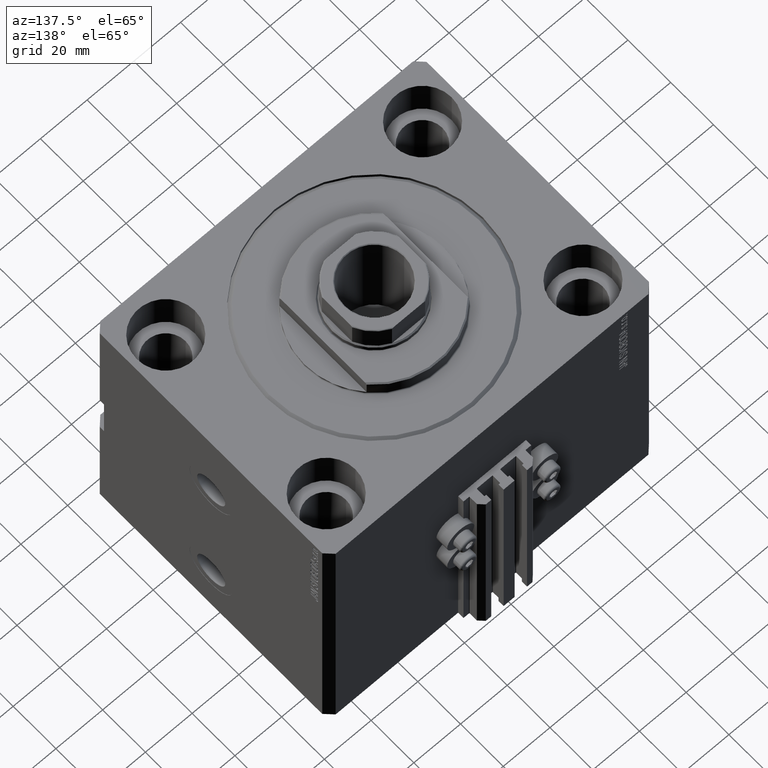
[diagram: clean part render]
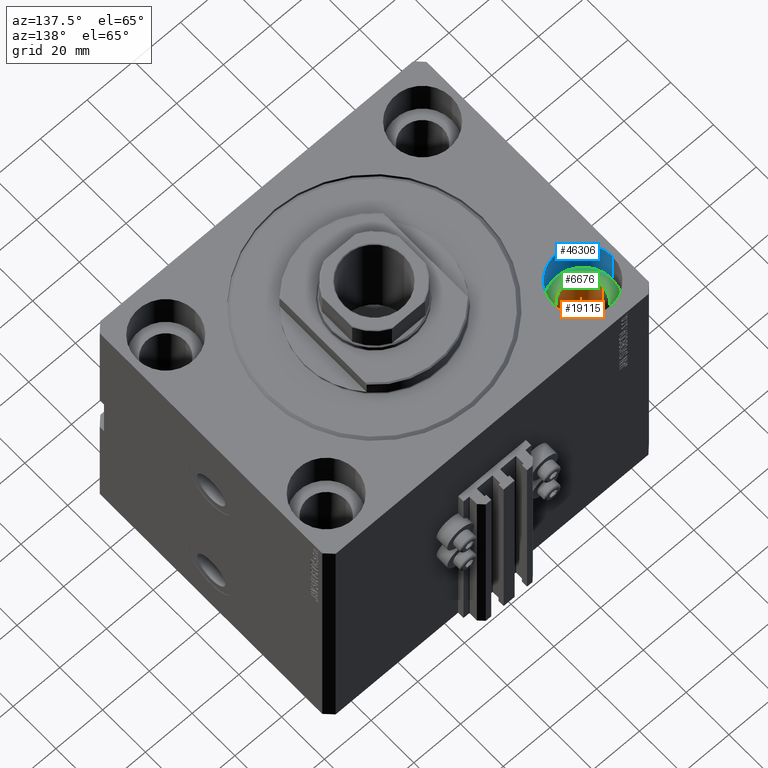
[diagram: same view with three faces highlighted in distinct colors, each labeled with its STEP entity id]
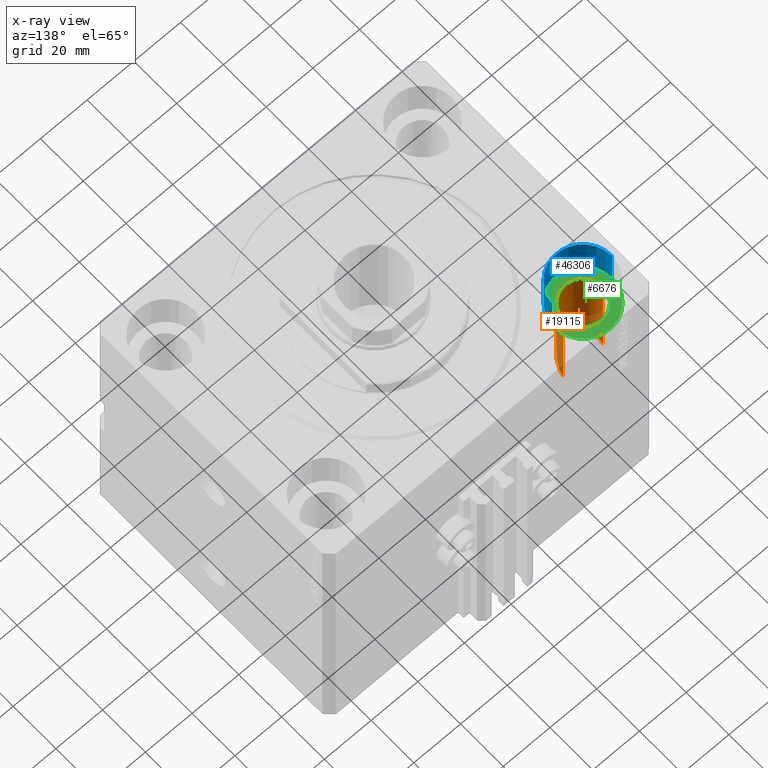
[diagram: x-ray of the same camera — body ghosted, the three highlighted faces saturated]
A machine part, auxiliary view with three faces highlighted in distinct colors.
The next image is the same camera in x-ray (body ghosted, the three faces saturated) — at least one of them is partly hidden behind the body in this view.
Their STEP definitions:

[orange] entity #19115 — the highlighted cylindrical surface (edge-blend (fillet) strip) has radius 8.5 mm, axis along (0, 0, 1).
#583 = CARTESIAN_POINT ( 'NONE',  ( -55.00000000000000711, 37.49999999999999289, -120.0000000000000000 ) ) ;
#988 = VERTEX_POINT ( 'NONE', #19575 ) ;
#1181 = CARTESIAN_POINT ( 'NONE',  ( -63.50000000000000000, 37.49999999999999289, -60.00000000000001421 ) ) ;
#3198 = ORIENTED_EDGE ( 'NONE', *, *, #10036, .T. ) ;
#3534 = LINE ( 'NONE', #25543, #8733 ) ;
#4194 = VERTEX_POINT ( 'NONE', #5883 ) ;
#4531 = DIRECTION ( 'NONE',  ( -0.000000000000000000, -0.000000000000000000, 1.000000000000000000 ) ) ;
#4727 = EDGE_CURVE ( 'NONE', #988, #18421, #42456, .T. ) ;
#5248 = ORIENTED_EDGE ( 'NONE', *, *, #4727, .F. ) ;
#5883 = CARTESIAN_POINT ( 'NONE',  ( -63.50000000000000000, 37.49999999999999289, -17.00000000000000000 ) ) ;
#7501 = ORIENTED_EDGE ( 'NONE', *, *, #34971, .T. ) ;
#8068 = FACE_OUTER_BOUND ( 'NONE', #35233, .T. ) ;
#8278 = CARTESIAN_POINT ( 'NONE',  ( -46.50000000000001421, 37.49999999999999289, -120.0000000000000000 ) ) ;
#8316 = DIRECTION ( 'NONE',  ( -0.000000000000000000, -0.000000000000000000, 1.000000000000000000 ) ) ;
#8733 = VECTOR ( 'NONE', #41216, 1000.000000000000000 ) ;
#10036 = EDGE_CURVE ( 'NONE', #4194, #18421, #38639, .T. ) ;
#10268 = AXIS2_PLACEMENT_3D ( 'NONE', #583, #8316, #23819 ) ;
#10942 = CARTESIAN_POINT ( 'NONE',  ( -63.50000000000000000, 37.49999999999999289, -60.00000000000001421 ) ) ;
#18301 =( BOUNDED_CURVE ( )  B_SPLINE_CURVE ( 3, ( #49108, #28153, #19675, #1181 ),
 .UNSPECIFIED., .F., .F. ) 
 B_SPLINE_CURVE_WITH_KNOTS ( ( 4, 4 ),
 ( 4.712388980384689674, 7.853981633974482790 ),
 .UNSPECIFIED. ) 
 CURVE ( )  GEOMETRIC_REPRESENTATION_ITEM ( )  RATIONAL_B_SPLINE_CURVE ( ( 1.000000000000000000, 0.3333333333333333703, 0.3333333333333333703, 1.000000000000000000 ) ) 
 REPRESENTATION_ITEM ( '' )  );
#18421 = VERTEX_POINT ( 'NONE', #23807 ) ;
#19115 = ADVANCED_FACE ( 'NONE', ( #8068 ), #35017, .F. ) ;
#19575 = CARTESIAN_POINT ( 'NONE',  ( -46.50000000000000000, 37.49999999999999289, -60.00000000000001421 ) ) ;
#19675 = CARTESIAN_POINT ( 'NONE',  ( -63.50000000000000000, 20.50000000000000355, -43.00000000000002132 ) ) ;
#23533 = AXIS2_PLACEMENT_3D ( 'NONE', #30232, #45432, #38198 ) ;
#23807 = CARTESIAN_POINT ( 'NONE',  ( -46.50000000000001421, 37.49999999999999289, -17.00000000000000000 ) ) ;
#23819 = DIRECTION ( 'NONE',  ( 1.000000000000000000, 0.000000000000000000, 0.000000000000000000 ) ) ;
#25543 = CARTESIAN_POINT ( 'NONE',  ( -63.50000000000000000, 37.49999999999999289, -120.0000000000000000 ) ) ;
#28153 = CARTESIAN_POINT ( 'NONE',  ( -46.50000000000000000, 20.50000000000000355, -43.00000000000002132 ) ) ;
#30232 = CARTESIAN_POINT ( 'NONE',  ( -55.00000000000000711, 37.49999999999999289, -17.00000000000000000 ) ) ;
#32938 = VECTOR ( 'NONE', #4531, 1000.000000000000000 ) ;
#34971 = EDGE_CURVE ( 'NONE', #988, #47379, #18301, .T. ) ;
#35017 = CYLINDRICAL_SURFACE ( 'NONE', #10268, 8.499999999999992895 ) ;
#35233 = EDGE_LOOP ( 'NONE', ( #7501, #43829, #3198, #5248 ) ) ;
#38198 = DIRECTION ( 'NONE',  ( 1.000000000000000000, 0.000000000000000000, 0.000000000000000000 ) ) ;
#38639 = CIRCLE ( 'NONE', #23533, 8.499999999999992895 ) ;
#39110 = EDGE_CURVE ( 'NONE', #47379, #4194, #3534, .T. ) ;
#41216 = DIRECTION ( 'NONE',  ( -0.000000000000000000, -0.000000000000000000, 1.000000000000000000 ) ) ;
#42456 = LINE ( 'NONE', #8278, #32938 ) ;
#43829 = ORIENTED_EDGE ( 'NONE', *, *, #39110, .T. ) ;
#45432 = DIRECTION ( 'NONE',  ( 0.000000000000000000, 0.000000000000000000, 1.000000000000000000 ) ) ;
#47379 = VERTEX_POINT ( 'NONE', #10942 ) ;
#49108 = CARTESIAN_POINT ( 'NONE',  ( -46.50000000000000000, 37.49999999999999289, -60.00000000000001421 ) ) ;

[blue] entity #46306 — the highlighted cylindrical surface (partial cylindrical patch) has radius 12.5 mm, axis along (0, 0, 1).
#633 = CARTESIAN_POINT ( 'NONE',  ( -67.50000000000000000, 37.49999999999999289, 0.000000000000000000 ) ) ;
#2712 = LINE ( 'NONE', #17956, #14186 ) ;
#2832 = DIRECTION ( 'NONE',  ( 1.000000000000000000, 0.000000000000000000, 0.000000000000000000 ) ) ;
#5238 = FACE_OUTER_BOUND ( 'NONE', #26831, .T. ) ;
#5935 = EDGE_CURVE ( 'NONE', #18557, #20126, #8949, .T. ) ;
#6699 = CIRCLE ( 'NONE', #36165, 12.49999999999999645 ) ;
#7630 = EDGE_CURVE ( 'NONE', #13389, #35806, #6699, .T. ) ;
#8949 = CIRCLE ( 'NONE', #36844, 12.49999999999999645 ) ;
#12052 = AXIS2_PLACEMENT_3D ( 'NONE', #35674, #47147, #12959 ) ;
#12959 = DIRECTION ( 'NONE',  ( 1.000000000000000000, 0.000000000000000000, 0.000000000000000000 ) ) ;
#13389 = VERTEX_POINT ( 'NONE', #633 ) ;
#14186 = VECTOR ( 'NONE', #17200, 1000.000000000000000 ) ;
#15675 = DIRECTION ( 'NONE',  ( 0.000000000000000000, 0.000000000000000000, 1.000000000000000000 ) ) ;
#16761 = ORIENTED_EDGE ( 'NONE', *, *, #5935, .F. ) ;
#16860 = CARTESIAN_POINT ( 'NONE',  ( -42.50000000000000711, 37.49999999999999289, -17.00000000000000000 ) ) ;
#17200 = DIRECTION ( 'NONE',  ( -0.000000000000000000, -0.000000000000000000, 1.000000000000000000 ) ) ;
#17454 = ORIENTED_EDGE ( 'NONE', *, *, #34882, .T. ) ;
#17956 = CARTESIAN_POINT ( 'NONE',  ( -67.50000000000000000, 37.49999999999999289, -17.00000000000000000 ) ) ;
#18557 = VERTEX_POINT ( 'NONE', #48688 ) ;
#20126 = VERTEX_POINT ( 'NONE', #23998 ) ;
#20191 = ORIENTED_EDGE ( 'NONE', *, *, #48858, .F. ) ;
#20484 = CYLINDRICAL_SURFACE ( 'NONE', #12052, 12.49999999999999645 ) ;
#21839 = CARTESIAN_POINT ( 'NONE',  ( -55.00000000000000711, 37.49999999999999289, -17.00000000000000000 ) ) ;
#23158 = CARTESIAN_POINT ( 'NONE',  ( -42.50000000000000711, 37.49999999999999289, 0.000000000000000000 ) ) ;
#23998 = CARTESIAN_POINT ( 'NONE',  ( -42.50000000000000711, 37.49999999999999289, -17.00000000000000000 ) ) ;
#26831 = EDGE_LOOP ( 'NONE', ( #16761, #17454, #49126, #20191 ) ) ;
#34159 = CARTESIAN_POINT ( 'NONE',  ( -55.00000000000000711, 37.49999999999999289, 0.000000000000000000 ) ) ;
#34882 = EDGE_CURVE ( 'NONE', #18557, #13389, #2712, .T. ) ;
#35674 = CARTESIAN_POINT ( 'NONE',  ( -55.00000000000000711, 37.49999999999999289, -17.00000000000000000 ) ) ;
#35806 = VERTEX_POINT ( 'NONE', #23158 ) ;
#36060 = LINE ( 'NONE', #16860, #48007 ) ;
#36165 = AXIS2_PLACEMENT_3D ( 'NONE', #34159, #15675, #37897 ) ;
#36844 = AXIS2_PLACEMENT_3D ( 'NONE', #21839, #37262, #2832 ) ;
#37262 = DIRECTION ( 'NONE',  ( 0.000000000000000000, 0.000000000000000000, 1.000000000000000000 ) ) ;
#37897 = DIRECTION ( 'NONE',  ( 1.000000000000000000, 0.000000000000000000, 0.000000000000000000 ) ) ;
#46306 = ADVANCED_FACE ( 'NONE', ( #5238 ), #20484, .F. ) ;
#47147 = DIRECTION ( 'NONE',  ( -0.000000000000000000, -0.000000000000000000, 1.000000000000000000 ) ) ;
#47285 = DIRECTION ( 'NONE',  ( -0.000000000000000000, -0.000000000000000000, 1.000000000000000000 ) ) ;
#48007 = VECTOR ( 'NONE', #47285, 1000.000000000000000 ) ;
#48688 = CARTESIAN_POINT ( 'NONE',  ( -67.50000000000000000, 37.49999999999999289, -17.00000000000000000 ) ) ;
#48858 = EDGE_CURVE ( 'NONE', #20126, #35806, #36060, .T. ) ;
#49126 = ORIENTED_EDGE ( 'NONE', *, *, #7630, .T. ) ;

[green] entity #6676 — the highlighted planar face has unit normal (0, 0, 1).
#1205 = AXIS2_PLACEMENT_3D ( 'NONE', #47012, #36278, #24833 ) ;
#1404 = CIRCLE ( 'NONE', #45987, 12.49999999999999645 ) ;
#2832 = DIRECTION ( 'NONE',  ( 1.000000000000000000, 0.000000000000000000, 0.000000000000000000 ) ) ;
#4194 = VERTEX_POINT ( 'NONE', #5883 ) ;
#5883 = CARTESIAN_POINT ( 'NONE',  ( -63.50000000000000000, 37.49999999999999289, -17.00000000000000000 ) ) ;
#5935 = EDGE_CURVE ( 'NONE', #18557, #20126, #8949, .T. ) ;
#6676 = ADVANCED_FACE ( 'NONE', ( #13068, #32305 ), #21081, .T. ) ;
#8093 = CARTESIAN_POINT ( 'NONE',  ( -55.00000000000000711, 37.49999999999999289, -17.00000000000000000 ) ) ;
#8949 = CIRCLE ( 'NONE', #36844, 12.49999999999999645 ) ;
#10036 = EDGE_CURVE ( 'NONE', #4194, #18421, #38639, .T. ) ;
#10814 = EDGE_LOOP ( 'NONE', ( #15833, #38831 ) ) ;
#11197 = ORIENTED_EDGE ( 'NONE', *, *, #37297, .F. ) ;
#11849 = AXIS2_PLACEMENT_3D ( 'NONE', #8093, #27334, #16568 ) ;
#11891 = CARTESIAN_POINT ( 'NONE',  ( -55.00000000000000711, 37.49999999999999289, -17.00000000000000000 ) ) ;
#13068 = FACE_BOUND ( 'NONE', #18168, .T. ) ;
#15034 = CIRCLE ( 'NONE', #11849, 8.499999999999992895 ) ;
#15833 = ORIENTED_EDGE ( 'NONE', *, *, #34135, .T. ) ;
#16156 = DIRECTION ( 'NONE',  ( 0.000000000000000000, 0.000000000000000000, 1.000000000000000000 ) ) ;
#16568 = DIRECTION ( 'NONE',  ( 1.000000000000000000, 0.000000000000000000, 0.000000000000000000 ) ) ;
#18168 = EDGE_LOOP ( 'NONE', ( #11197, #35666 ) ) ;
#18421 = VERTEX_POINT ( 'NONE', #23807 ) ;
#18557 = VERTEX_POINT ( 'NONE', #48688 ) ;
#20126 = VERTEX_POINT ( 'NONE', #23998 ) ;
#21081 = PLANE ( 'NONE',  #1205 ) ;
#21839 = CARTESIAN_POINT ( 'NONE',  ( -55.00000000000000711, 37.49999999999999289, -17.00000000000000000 ) ) ;
#23533 = AXIS2_PLACEMENT_3D ( 'NONE', #30232, #45432, #38198 ) ;
#23807 = CARTESIAN_POINT ( 'NONE',  ( -46.50000000000001421, 37.49999999999999289, -17.00000000000000000 ) ) ;
#23998 = CARTESIAN_POINT ( 'NONE',  ( -42.50000000000000711, 37.49999999999999289, -17.00000000000000000 ) ) ;
#24833 = DIRECTION ( 'NONE',  ( 1.000000000000000000, 0.000000000000000000, -0.000000000000000000 ) ) ;
#27334 = DIRECTION ( 'NONE',  ( 0.000000000000000000, 0.000000000000000000, 1.000000000000000000 ) ) ;
#30232 = CARTESIAN_POINT ( 'NONE',  ( -55.00000000000000711, 37.49999999999999289, -17.00000000000000000 ) ) ;
#32305 = FACE_OUTER_BOUND ( 'NONE', #10814, .T. ) ;
#34135 = EDGE_CURVE ( 'NONE', #20126, #18557, #1404, .T. ) ;
#34379 = DIRECTION ( 'NONE',  ( 1.000000000000000000, 0.000000000000000000, 0.000000000000000000 ) ) ;
#35666 = ORIENTED_EDGE ( 'NONE', *, *, #10036, .F. ) ;
#36278 = DIRECTION ( 'NONE',  ( 0.000000000000000000, 0.000000000000000000, 1.000000000000000000 ) ) ;
#36844 = AXIS2_PLACEMENT_3D ( 'NONE', #21839, #37262, #2832 ) ;
#37262 = DIRECTION ( 'NONE',  ( 0.000000000000000000, 0.000000000000000000, 1.000000000000000000 ) ) ;
#37297 = EDGE_CURVE ( 'NONE', #18421, #4194, #15034, .T. ) ;
#38198 = DIRECTION ( 'NONE',  ( 1.000000000000000000, 0.000000000000000000, 0.000000000000000000 ) ) ;
#38639 = CIRCLE ( 'NONE', #23533, 8.499999999999992895 ) ;
#38831 = ORIENTED_EDGE ( 'NONE', *, *, #5935, .T. ) ;
#45432 = DIRECTION ( 'NONE',  ( 0.000000000000000000, 0.000000000000000000, 1.000000000000000000 ) ) ;
#45987 = AXIS2_PLACEMENT_3D ( 'NONE', #11891, #16156, #34379 ) ;
#47012 = CARTESIAN_POINT ( 'NONE',  ( -55.00000000000000711, 37.49999999999999289, -17.00000000000000000 ) ) ;
#48688 = CARTESIAN_POINT ( 'NONE',  ( -67.50000000000000000, 37.49999999999999289, -17.00000000000000000 ) ) ;